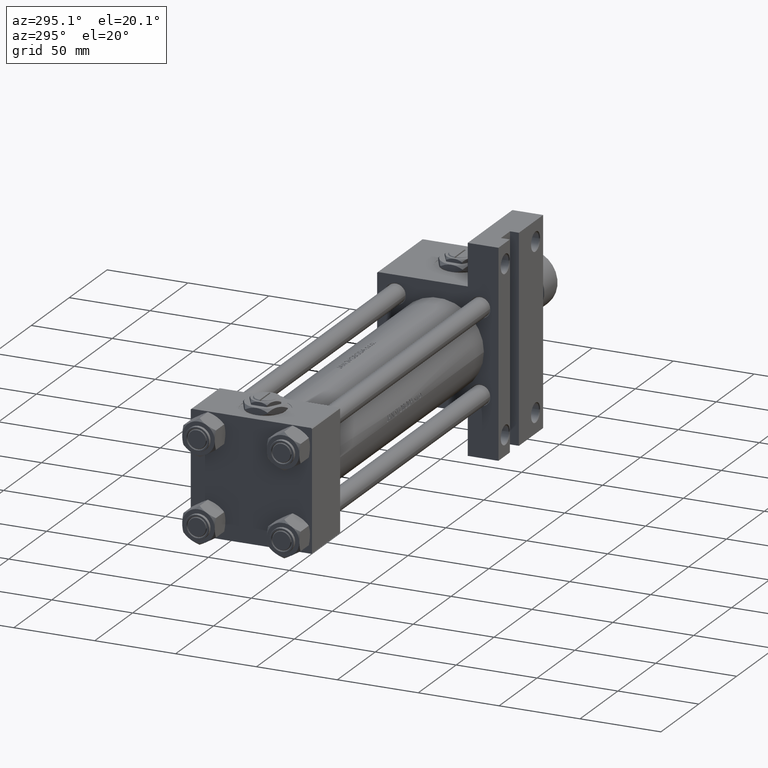
[diagram: clean part render]
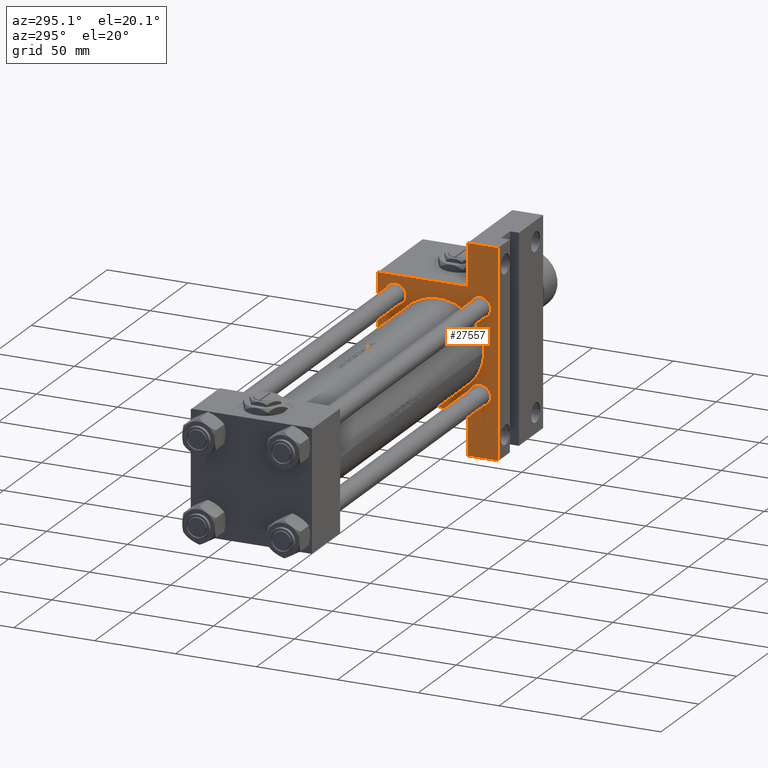
[diagram: same view with one face highlighted and labeled with its STEP entity id]
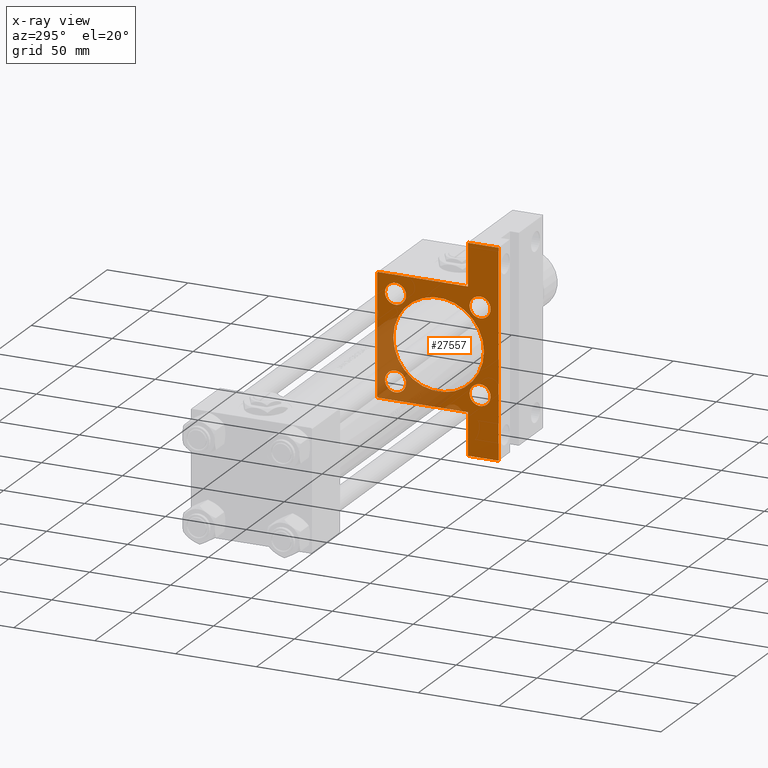
[diagram: x-ray of the same camera — body ghosted, the highlighted face saturated]
A machine part, auxiliary view. The second image highlights one B-rep face of the part: STEP entity #27557.
The next image is the same camera in x-ray: the body ghosted, the highlighted face saturated — about 23% of this face is hidden behind the body in this view.
In plain terms, the highlighted planar face has unit normal (-1, 0, 0).
Its self-contained STEP definition (entity closure, byte-faithful):
#77 = CIRCLE ( 'NONE', #18702, 6.500000000000008882 ) ;
#181 = LINE ( 'NONE', #39738, #46625 ) ;
#336 = DIRECTION ( 'NONE',  ( 0.000000000000000000, 0.000000000000000000, -1.000000000000000000 ) ) ;
#429 = DIRECTION ( 'NONE',  ( -1.000000000000000000, -0.000000000000000000, 0.000000000000000000 ) ) ;
#714 = DIRECTION ( 'NONE',  ( 0.000000000000000000, 0.000000000000000000, 1.000000000000000000 ) ) ;
#1077 = VECTOR ( 'NONE', #29206, 1000.000000000000000 ) ;
#1233 = CARTESIAN_POINT ( 'NONE',  ( 246.0000000000000284, 63.49999999999997158, -18.50000000000000000 ) ) ;
#1658 = CIRCLE ( 'NONE', #26761, 28.00000000000000000 ) ;
#2249 = DIRECTION ( 'NONE',  ( 1.000000000000000000, 0.000000000000000000, -0.000000000000000000 ) ) ;
#2391 = EDGE_LOOP ( 'NONE', ( #17622, #15706 ) ) ;
#2570 = DIRECTION ( 'NONE',  ( 1.000000000000000000, 0.000000000000000000, -0.000000000000000000 ) ) ;
#2745 = CIRCLE ( 'NONE', #29467, 28.00000000000000000 ) ;
#2984 = DIRECTION ( 'NONE',  ( 0.000000000000000000, 0.000000000000000000, -1.000000000000000000 ) ) ;
#3058 = CARTESIAN_POINT ( 'NONE',  ( 246.0000000000000000, -37.50000000000000000, 36.99999999999995026 ) ) ;
#3555 = EDGE_CURVE ( 'NONE', #17044, #22152, #11110, .T. ) ;
#3765 = CARTESIAN_POINT ( 'NONE',  ( 246.0000000000000000, 37.50000000000000000, 37.49999999999999289 ) ) ;
#3939 = VERTEX_POINT ( 'NONE', #19347 ) ;
#4223 = ORIENTED_EDGE ( 'NONE', *, *, #30159, .T. ) ;
#4427 = EDGE_CURVE ( 'NONE', #36200, #22417, #18446, .T. ) ;
#5760 = CIRCLE ( 'NONE', #11356, 6.500000000000008882 ) ;
#5778 = CARTESIAN_POINT ( 'NONE',  ( 246.0000000000000000, -63.50000000000002842, -18.50000000000000000 ) ) ;
#5896 = DIRECTION ( 'NONE',  ( 0.000000000000000000, -9.251858538542972814E-17, -1.000000000000000000 ) ) ;
#6527 = VECTOR ( 'NONE', #42826, 1000.000000000000000 ) ;
#6576 = VERTEX_POINT ( 'NONE', #31666 ) ;
#6708 = ORIENTED_EDGE ( 'NONE', *, *, #7205, .F. ) ;
#7205 = EDGE_CURVE ( 'NONE', #34461, #9558, #13032, .T. ) ;
#8269 = ORIENTED_EDGE ( 'NONE', *, *, #41854, .T. ) ;
#8272 = CIRCLE ( 'NONE', #9909, 6.499999999999995559 ) ;
#8837 = CIRCLE ( 'NONE', #36392, 6.500000000000008882 ) ;
#8958 = DIRECTION ( 'NONE',  ( 0.000000000000000000, 0.000000000000000000, -1.000000000000000000 ) ) ;
#9558 = VERTEX_POINT ( 'NONE', #18159 ) ;
#9628 = ORIENTED_EDGE ( 'NONE', *, *, #48721, .T. ) ;
#9858 = CARTESIAN_POINT ( 'NONE',  ( 246.0000000000000000, 26.14999999999999858, 26.15000000000000213 ) ) ;
#9909 = AXIS2_PLACEMENT_3D ( 'NONE', #45455, #21872, #9950 ) ;
#9950 = DIRECTION ( 'NONE',  ( 0.000000000000000000, 0.000000000000000000, 1.000000000000000000 ) ) ;
#10244 = EDGE_CURVE ( 'NONE', #22152, #28896, #42102, .T. ) ;
#10337 = VERTEX_POINT ( 'NONE', #21021 ) ;
#11110 = LINE ( 'NONE', #34694, #15367 ) ;
#11220 = CARTESIAN_POINT ( 'NONE',  ( 246.0000000000000000, -26.14999999999999147, -32.65000000000002700 ) ) ;
#11356 = AXIS2_PLACEMENT_3D ( 'NONE', #40941, #12837, #44495 ) ;
#11367 = DIRECTION ( 'NONE',  ( 0.000000000000000000, 0.000000000000000000, 1.000000000000000000 ) ) ;
#11766 = ORIENTED_EDGE ( 'NONE', *, *, #40289, .T. ) ;
#11785 = LINE ( 'NONE', #35109, #25119 ) ;
#12020 = ORIENTED_EDGE ( 'NONE', *, *, #4427, .T. ) ;
#12382 = DIRECTION ( 'NONE',  ( 1.000000000000000000, 0.000000000000000000, -0.000000000000000000 ) ) ;
#12444 = EDGE_LOOP ( 'NONE', ( #19683, #26540 ) ) ;
#12658 = CARTESIAN_POINT ( 'NONE',  ( 246.0000000000000000, -63.50000000000002842, -18.50000000000000000 ) ) ;
#12783 = CARTESIAN_POINT ( 'NONE',  ( 246.0000000000000000, 6.123233995736772199E-17, -0.5000000000000004441 ) ) ;
#12837 = DIRECTION ( 'NONE',  ( 1.000000000000000000, 0.000000000000000000, -0.000000000000000000 ) ) ;
#12909 = VECTOR ( 'NONE', #27788, 1000.000000000000000 ) ;
#13032 = LINE ( 'NONE', #20630, #31818 ) ;
#13090 = VERTEX_POINT ( 'NONE', #30929 ) ;
#13374 = VERTEX_POINT ( 'NONE', #5778 ) ;
#13887 = EDGE_LOOP ( 'NONE', ( #48947, #45882 ) ) ;
#14248 = CARTESIAN_POINT ( 'NONE',  ( 246.0000000000000000, -26.14999999999999147, 26.15000000000000924 ) ) ;
#14464 = AXIS2_PLACEMENT_3D ( 'NONE', #46104, #429, #11367 ) ;
#14469 = CARTESIAN_POINT ( 'NONE',  ( 246.0000000000000000, 6.123233995736772199E-17, -0.5000000000000004441 ) ) ;
#14502 = DIRECTION ( 'NONE',  ( 1.000000000000000000, 0.000000000000000000, -0.000000000000000000 ) ) ;
#14974 = EDGE_CURVE ( 'NONE', #32339, #35492, #27112, .T. ) ;
#15367 = VECTOR ( 'NONE', #2984, 1000.000000000000000 ) ;
#15706 = ORIENTED_EDGE ( 'NONE', *, *, #32541, .T. ) ;
#15928 = FACE_BOUND ( 'NONE', #17240, .T. ) ;
#16104 = CARTESIAN_POINT ( 'NONE',  ( 246.0000000000000000, -26.14999999999999147, 19.65000000000000213 ) ) ;
#16406 = VERTEX_POINT ( 'NONE', #37979 ) ;
#17044 = VERTEX_POINT ( 'NONE', #1233 ) ;
#17227 = EDGE_CURVE ( 'NONE', #16406, #17044, #181, .T. ) ;
#17240 = EDGE_LOOP ( 'NONE', ( #4223, #11766 ) ) ;
#17346 = AXIS2_PLACEMENT_3D ( 'NONE', #9858, #2249, #21784 ) ;
#17622 = ORIENTED_EDGE ( 'NONE', *, *, #49957, .T. ) ;
#18159 = CARTESIAN_POINT ( 'NONE',  ( 246.0000000000000000, -37.50000000000000000, -18.50000000000000000 ) ) ;
#18375 = CARTESIAN_POINT ( 'NONE',  ( 246.0000000000000000, 6.123233995736772199E-17, 27.50000000000000000 ) ) ;
#18446 = CIRCLE ( 'NONE', #42727, 6.500000000000008882 ) ;
#18702 = AXIS2_PLACEMENT_3D ( 'NONE', #23570, #23315, #714 ) ;
#18991 = CARTESIAN_POINT ( 'NONE',  ( 246.0000000000000000, 26.14999999999999858, -32.65000000000001279 ) ) ;
#19347 = CARTESIAN_POINT ( 'NONE',  ( 246.0000000000000000, -37.00000000000000000, 37.49999999999997868 ) ) ;
#19637 = VERTEX_POINT ( 'NONE', #16104 ) ;
#19683 = ORIENTED_EDGE ( 'NONE', *, *, #45910, .T. ) ;
#19798 = CARTESIAN_POINT ( 'NONE',  ( 246.0000000000000000, 37.50000000000000000, -37.50000000000000000 ) ) ;
#19972 = DIRECTION ( 'NONE',  ( 1.067522139062651657E-15, 1.000000000000000000, -0.000000000000000000 ) ) ;
#20174 = AXIS2_PLACEMENT_3D ( 'NONE', #14248, #2570, #30207 ) ;
#20630 = CARTESIAN_POINT ( 'NONE',  ( 246.0000000000000000, -37.50000000000000000, 37.49999999999997868 ) ) ;
#21021 = CARTESIAN_POINT ( 'NONE',  ( 246.0000000000000000, 3.490243377569956456E-15, -28.50000000000000000 ) ) ;
#21307 = CARTESIAN_POINT ( 'NONE',  ( 246.0000000000000284, 63.49999999999997158, -37.50000000000000000 ) ) ;
#21421 = EDGE_LOOP ( 'NONE', ( #8269, #12020 ) ) ;
#21784 = DIRECTION ( 'NONE',  ( 0.000000000000000000, 0.000000000000000000, 1.000000000000000000 ) ) ;
#21872 = DIRECTION ( 'NONE',  ( 1.000000000000000000, 0.000000000000000000, -0.000000000000000000 ) ) ;
#22152 = VERTEX_POINT ( 'NONE', #21307 ) ;
#22250 = CARTESIAN_POINT ( 'NONE',  ( 246.0000000000000000, 26.14999999999999858, -19.64999999999999503 ) ) ;
#22283 = CARTESIAN_POINT ( 'NONE',  ( 246.0000000000000000, 26.14999999999999858, 32.65000000000000568 ) ) ;
#22417 = VERTEX_POINT ( 'NONE', #22250 ) ;
#22542 = EDGE_CURVE ( 'NONE', #13090, #27881, #32855, .T. ) ;
#22766 = CIRCLE ( 'NONE', #25196, 6.500000000000008882 ) ;
#23269 = FACE_BOUND ( 'NONE', #21421, .T. ) ;
#23315 = DIRECTION ( 'NONE',  ( 1.000000000000000000, 0.000000000000000000, -0.000000000000000000 ) ) ;
#23347 = ORIENTED_EDGE ( 'NONE', *, *, #17227, .T. ) ;
#23570 = CARTESIAN_POINT ( 'NONE',  ( 246.0000000000000000, 26.14999999999999858, -26.15000000000000213 ) ) ;
#24906 = LINE ( 'NONE', #25401, #1077 ) ;
#25110 = DIRECTION ( 'NONE',  ( 1.000000000000000000, 0.000000000000000000, 0.000000000000000000 ) ) ;
#25119 = VECTOR ( 'NONE', #336, 1000.000000000000000 ) ;
#25196 = AXIS2_PLACEMENT_3D ( 'NONE', #39000, #12382, #32126 ) ;
#25401 = CARTESIAN_POINT ( 'NONE',  ( 246.0000000000000000, -37.25000000000100897, 37.24999999999894129 ) ) ;
#25487 = ORIENTED_EDGE ( 'NONE', *, *, #40708, .T. ) ;
#26540 = ORIENTED_EDGE ( 'NONE', *, *, #14974, .T. ) ;
#26761 = AXIS2_PLACEMENT_3D ( 'NONE', #12783, #44193, #8958 ) ;
#26779 = LINE ( 'NONE', #42242, #12909 ) ;
#26827 = PLANE ( 'NONE',  #14464 ) ;
#27112 = CIRCLE ( 'NONE', #17346, 6.499999999999995559 ) ;
#27344 = DIRECTION ( 'NONE',  ( 0.000000000000000000, 0.000000000000000000, 1.000000000000000000 ) ) ;
#27557 = ADVANCED_FACE ( 'NONE', ( #35204, #46864, #23269, #15928, #38741, #30375 ), #26827, .T. ) ;
#27788 = DIRECTION ( 'NONE',  ( 0.000000000000000000, 0.000000000000000000, -1.000000000000000000 ) ) ;
#27881 = VERTEX_POINT ( 'NONE', #32002 ) ;
#28801 = DIRECTION ( 'NONE',  ( 0.000000000000000000, 0.7071067811865474617, -0.7071067811865474617 ) ) ;
#28896 = VERTEX_POINT ( 'NONE', #36623 ) ;
#29206 = DIRECTION ( 'NONE',  ( -0.000000000000000000, 0.7071067811865279218, 0.7071067811865672237 ) ) ;
#29467 = AXIS2_PLACEMENT_3D ( 'NONE', #14469, #25110, #37021 ) ;
#29668 = EDGE_CURVE ( 'NONE', #13374, #28896, #26779, .T. ) ;
#30137 = EDGE_CURVE ( 'NONE', #19637, #6576, #38822, .T. ) ;
#30140 = CARTESIAN_POINT ( 'NONE',  ( 246.0000000000000000, 26.14999999999999858, -26.15000000000000213 ) ) ;
#30159 = EDGE_CURVE ( 'NONE', #41499, #49887, #8837, .T. ) ;
#30207 = DIRECTION ( 'NONE',  ( 0.000000000000000000, 0.000000000000000000, 1.000000000000000000 ) ) ;
#30375 = FACE_OUTER_BOUND ( 'NONE', #34015, .T. ) ;
#30702 = DIRECTION ( 'NONE',  ( 0.000000000000000000, -1.000000000000000000, 0.000000000000000000 ) ) ;
#30929 = CARTESIAN_POINT ( 'NONE',  ( 246.0000000000000000, 36.99999999999994316, 37.49999999999999289 ) ) ;
#31359 = VERTEX_POINT ( 'NONE', #18375 ) ;
#31372 = EDGE_CURVE ( 'NONE', #27881, #16406, #11785, .T. ) ;
#31666 = CARTESIAN_POINT ( 'NONE',  ( 246.0000000000000000, -26.14999999999999147, 32.65000000000001990 ) ) ;
#31818 = VECTOR ( 'NONE', #5896, 1000.000000000000000 ) ;
#32002 = CARTESIAN_POINT ( 'NONE',  ( 246.0000000000000000, 37.50000000000000000, 36.99999999999993605 ) ) ;
#32090 = ORIENTED_EDGE ( 'NONE', *, *, #22542, .T. ) ;
#32126 = DIRECTION ( 'NONE',  ( 0.000000000000000000, 0.000000000000000000, 1.000000000000000000 ) ) ;
#32339 = VERTEX_POINT ( 'NONE', #49823 ) ;
#32541 = EDGE_CURVE ( 'NONE', #10337, #31359, #1658, .T. ) ;
#32593 = CARTESIAN_POINT ( 'NONE',  ( 246.0000000000000000, -26.14999999999999147, -19.65000000000000213 ) ) ;
#32855 = LINE ( 'NONE', #48828, #40286 ) ;
#33742 = EDGE_CURVE ( 'NONE', #6576, #19637, #22766, .T. ) ;
#34015 = EDGE_LOOP ( 'NONE', ( #49039, #32090, #45996, #23347, #34915, #42587, #38052, #25487, #6708, #9628 ) ) ;
#34461 = VERTEX_POINT ( 'NONE', #3058 ) ;
#34694 = CARTESIAN_POINT ( 'NONE',  ( 246.0000000000000284, 63.49999999999997158, -18.50000000000000000 ) ) ;
#34915 = ORIENTED_EDGE ( 'NONE', *, *, #3555, .T. ) ;
#35109 = CARTESIAN_POINT ( 'NONE',  ( 246.0000000000000000, 37.50000000000000000, 37.49999999999999289 ) ) ;
#35204 = FACE_BOUND ( 'NONE', #13887, .T. ) ;
#35492 = VERTEX_POINT ( 'NONE', #22283 ) ;
#35623 = EDGE_CURVE ( 'NONE', #13090, #3939, #46887, .T. ) ;
#36200 = VERTEX_POINT ( 'NONE', #18991 ) ;
#36392 = AXIS2_PLACEMENT_3D ( 'NONE', #41859, #14502, #45935 ) ;
#36623 = CARTESIAN_POINT ( 'NONE',  ( 246.0000000000000000, -63.50000000000002842, -37.50000000000000000 ) ) ;
#37021 = DIRECTION ( 'NONE',  ( 0.000000000000000000, 0.000000000000000000, -1.000000000000000000 ) ) ;
#37979 = CARTESIAN_POINT ( 'NONE',  ( 246.0000000000000000, 37.50000000000000000, -18.50000000000000355 ) ) ;
#38052 = ORIENTED_EDGE ( 'NONE', *, *, #29668, .F. ) ;
#38741 = FACE_BOUND ( 'NONE', #2391, .T. ) ;
#38822 = CIRCLE ( 'NONE', #20174, 6.500000000000008882 ) ;
#39000 = CARTESIAN_POINT ( 'NONE',  ( 246.0000000000000000, -26.14999999999999147, 26.15000000000000924 ) ) ;
#39738 = CARTESIAN_POINT ( 'NONE',  ( 246.0000000000000284, 63.49999999999997158, -18.50000000000000000 ) ) ;
#40286 = VECTOR ( 'NONE', #28801, 1000.000000000000114 ) ;
#40289 = EDGE_CURVE ( 'NONE', #49887, #41499, #5760, .T. ) ;
#40708 = EDGE_CURVE ( 'NONE', #13374, #9558, #46652, .T. ) ;
#40941 = CARTESIAN_POINT ( 'NONE',  ( 246.0000000000000000, -26.14999999999999147, -26.15000000000000924 ) ) ;
#41499 = VERTEX_POINT ( 'NONE', #32593 ) ;
#41854 = EDGE_CURVE ( 'NONE', #22417, #36200, #77, .T. ) ;
#41859 = CARTESIAN_POINT ( 'NONE',  ( 246.0000000000000000, -26.14999999999999147, -26.15000000000000924 ) ) ;
#42069 = VECTOR ( 'NONE', #43066, 1000.000000000000000 ) ;
#42102 = LINE ( 'NONE', #19798, #48921 ) ;
#42242 = CARTESIAN_POINT ( 'NONE',  ( 246.0000000000000000, -63.50000000000002842, -18.50000000000000000 ) ) ;
#42547 = DIRECTION ( 'NONE',  ( 1.000000000000000000, 0.000000000000000000, -0.000000000000000000 ) ) ;
#42587 = ORIENTED_EDGE ( 'NONE', *, *, #10244, .T. ) ;
#42727 = AXIS2_PLACEMENT_3D ( 'NONE', #30140, #42547, #27344 ) ;
#42826 = DIRECTION ( 'NONE',  ( 0.000000000000000000, 1.000000000000000000, 0.000000000000000000 ) ) ;
#43066 = DIRECTION ( 'NONE',  ( 0.000000000000000000, -1.000000000000000000, -1.850371707708594316E-16 ) ) ;
#44193 = DIRECTION ( 'NONE',  ( 1.000000000000000000, 0.000000000000000000, 0.000000000000000000 ) ) ;
#44495 = DIRECTION ( 'NONE',  ( 0.000000000000000000, 0.000000000000000000, 1.000000000000000000 ) ) ;
#45455 = CARTESIAN_POINT ( 'NONE',  ( 246.0000000000000000, 26.14999999999999858, 26.15000000000000213 ) ) ;
#45882 = ORIENTED_EDGE ( 'NONE', *, *, #30137, .T. ) ;
#45910 = EDGE_CURVE ( 'NONE', #35492, #32339, #8272, .T. ) ;
#45935 = DIRECTION ( 'NONE',  ( 0.000000000000000000, 0.000000000000000000, 1.000000000000000000 ) ) ;
#45996 = ORIENTED_EDGE ( 'NONE', *, *, #31372, .T. ) ;
#46104 = CARTESIAN_POINT ( 'NONE',  ( 246.0000000000000000, 0.000000000000000000, 0.000000000000000000 ) ) ;
#46625 = VECTOR ( 'NONE', #19972, 1000.000000000000000 ) ;
#46652 = LINE ( 'NONE', #12658, #6527 ) ;
#46864 = FACE_BOUND ( 'NONE', #12444, .T. ) ;
#46887 = LINE ( 'NONE', #3765, #42069 ) ;
#48721 = EDGE_CURVE ( 'NONE', #34461, #3939, #24906, .T. ) ;
#48828 = CARTESIAN_POINT ( 'NONE',  ( 246.0000000000000000, 37.24999999999996447, 37.24999999999996447 ) ) ;
#48921 = VECTOR ( 'NONE', #30702, 1000.000000000000000 ) ;
#48947 = ORIENTED_EDGE ( 'NONE', *, *, #33742, .T. ) ;
#49039 = ORIENTED_EDGE ( 'NONE', *, *, #35623, .F. ) ;
#49823 = CARTESIAN_POINT ( 'NONE',  ( 246.0000000000000000, 26.14999999999999858, 19.65000000000000568 ) ) ;
#49887 = VERTEX_POINT ( 'NONE', #11220 ) ;
#49957 = EDGE_CURVE ( 'NONE', #31359, #10337, #2745, .T. ) ;